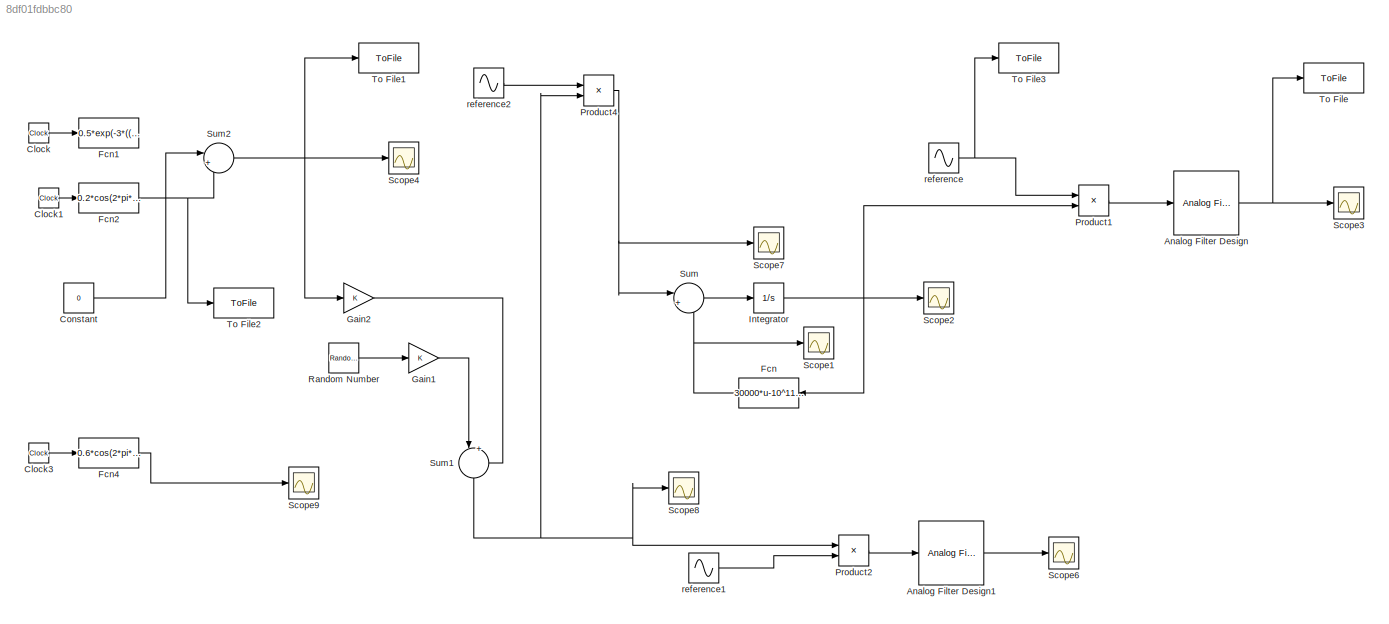
MODEL slx_8df01fdbbc80
KIND model
CONFIG AbsTol = auto
CONFIG EnableMultiTasking = off
CONFIG FixedStep = auto
CONFIG MaxStep = 1e-4
CONFIG MinStep = auto
CONFIG RelTol = 1e-3
CONFIG SampleTimeConstraint = Unconstrained
CONFIG Solver = VariableStepAuto
CONFIG SolverName = VariableStepAuto
CONFIG StartTime = 0.0
CONFIG StopTime = 5
BLOCK [Reference] Analog Filter Design  REF=dsparch4/Analog
Filter Design
  Ports = [1, 1]
  SourceBlock = dsparch4/Analog\nFilter Design
  SourceProductBaseCode = DS
  SourceProductName = DSP System Toolbox
  SourceType = Analog Filter Design
BLOCK [Reference] Analog Filter Design1  REF=dsparch4/Analog
Filter Design
  Ports = [1, 1]
  SourceBlock = dsparch4/Analog\nFilter Design
  SourceProductBaseCode = DS
  SourceProductName = DSP System Toolbox
  SourceType = Analog Filter Design
BLOCK [Clock] Clock
BLOCK [Clock] Clock1
BLOCK [Clock] Clock3
BLOCK [Constant] Constant
  Value = 0
BLOCK [Fcn] Fcn
  Expr = 30000*u-10^11*(13*10)*u^3
BLOCK [Fcn] Fcn1
  Expr = 0.5*exp(-3*((u-1)^2/1))
BLOCK [Fcn] Fcn2
  Expr = 0.2*cos(2*pi*1*u)*exp(-10*((u-2)^2/2))
BLOCK [Fcn] Fcn4
  Expr = 0.6*cos(2*pi*3*u-2*pi*1/3)*exp(-3*(u))
BLOCK [Gain] Gain1
  OutDataTypeStr = Inherit: Inherit via internal rule
  ParamDataTypeStr = Inherit: Inherit via internal rule
  SaturateOnIntegerOverflow = off
BLOCK [Gain] Gain2
  OutDataTypeStr = Inherit: Inherit via internal rule
  ParamDataTypeStr = Inherit: Inherit via internal rule
  SaturateOnIntegerOverflow = off
BLOCK [Integrator] Integrator
  Ports = [1, 1]
BLOCK [Product] Product1
  InputSameDT = off
  OutDataTypeStr = Inherit: Inherit via internal rule
  Ports = [2, 1]
  RndMeth = Floor
  SaturateOnIntegerOverflow = off
BLOCK [Product] Product2
  InputSameDT = off
  OutDataTypeStr = Inherit: Inherit via internal rule
  Ports = [2, 1]
  RndMeth = Floor
  SaturateOnIntegerOverflow = off
BLOCK [Product] Product4
  InputSameDT = off
  OutDataTypeStr = Inherit: Inherit via internal rule
  Ports = [2, 1]
  RndMeth = Floor
  SaturateOnIntegerOverflow = off
BLOCK [RandomNumber] Random Number
  SampleTime = 0.000001
  Variance = 4
BLOCK [Scope] Scope1
  NumInputPorts = 1
  Ports = [1]
  ScopeSpecificationString = Simulink.scopes.TimeScopeBlockCfg('CurrentConfiguration', extmgr.ConfigurationSet(extmgr.Configuration('Core','General UI',true),extmgr.Configuration('Core','Source UI',true),extmgr.Configuration('Sources','WiredSimulink',true,'DataLoggingVariableName','ScopeData1'),extmgr.Configuration('Visuals','Time Domain',true,'SerializedDisplays',{struct('MinYLimReal','-4.67204','MaxYLimReal','4.6884','YLabe...<+1389ch>
BLOCK [Scope] Scope2
  NumInputPorts = 1
  Ports = [1]
  ScopeSpecificationString = Simulink.scopes.TimeScopeBlockCfg('CurrentConfiguration', extmgr.ConfigurationSet(extmgr.Configuration('Core','General UI',true),extmgr.Configuration('Core','Source UI',true),extmgr.Configuration('Sources','WiredSimulink',true,'DataLoggingVariableName','ScopeData2'),extmgr.Configuration('Visuals','Time Domain',true,'SerializedDisplays',{struct('MinYLimReal','0.007875','MaxYLimReal','0.007944','YLa...<+1453ch>
BLOCK [Scope] Scope3
  NumInputPorts = 1
  Ports = [1]
  ScopeSpecificationString = Simulink.scopes.TimeScopeBlockCfg('CurrentConfiguration', extmgr.ConfigurationSet(extmgr.Configuration('Core','General UI',true,'FigureColor',[1 1 1]),extmgr.Configuration('Core','Source UI',true),extmgr.Configuration('Sources','WiredSimulink',true,'DataLoggingVariableName','ScopeData1'),extmgr.Configuration('Visuals','Time Domain',true,'SerializedDisplays',{struct('MinYLimReal','-0.0001','MaxYLim...<+1624ch>
BLOCK [Scope] Scope4
  NumInputPorts = 1
  Ports = [1]
  ScopeSpecificationString = Simulink.scopes.TimeScopeBlockCfg('CurrentConfiguration', extmgr.ConfigurationSet(extmgr.Configuration('Core','General UI',true,'FigureColor',[1 1 1]),extmgr.Configuration('Core','Source UI',true),extmgr.Configuration('Sources','WiredSimulink',true,'DataLoggingVariableName','ScopeData2'),extmgr.Configuration('Visuals','Time Domain',true,'SerializedDisplays',{struct('MinYLimReal','-0.39192','MaxYLi...<+1646ch>
BLOCK [Scope] Scope6
  NumInputPorts = 1
  Ports = [1]
  ScopeSpecificationString = Simulink.scopes.TimeScopeBlockCfg('CurrentConfiguration', extmgr.ConfigurationSet(extmgr.Configuration('Core','General UI',true),extmgr.Configuration('Core','Source UI',true),extmgr.Configuration('Sources','WiredSimulink',true,'DataLoggingVariableName','ScopeData2'),extmgr.Configuration('Visuals','Time Domain',true,'SerializedDisplays',{struct('MinYLimReal','-0.1279','MaxYLimReal','0.16829','YLabe...<+1730ch>
BLOCK [Scope] Scope7
  NumInputPorts = 1
  Ports = [1]
  ScopeSpecificationString = Simulink.scopes.TimeScopeBlockCfg('CurrentConfiguration', extmgr.ConfigurationSet(extmgr.Configuration('Core','General UI',true),extmgr.Configuration('Core','Source UI',true),extmgr.Configuration('Sources','WiredSimulink',true,'DataLoggingVariableName','ScopeData3'),extmgr.Configuration('Visuals','Time Domain',true,'SerializedDisplays',{struct('MinYLimReal','-19.69521','MaxYLimReal','20.11794','YL...<+1751ch>
BLOCK [Scope] Scope8
  NumInputPorts = 1
  Ports = [1]
  ScopeSpecificationString = Simulink.scopes.TimeScopeBlockCfg('CurrentConfiguration', extmgr.ConfigurationSet(extmgr.Configuration('Core','General UI',true,'FigureColor',[1 1 1]),extmgr.Configuration('Core','Source UI',true),extmgr.Configuration('Sources','WiredSimulink',true,'DataLoggingVariableName','ScopeData4'),extmgr.Configuration('Visuals','Time Domain',true,'SerializedDisplays',{struct('MinYLimReal','-10.29546','MaxYL...<+1589ch>
BLOCK [Scope] Scope9
  NumInputPorts = 1
  Ports = [1]
  ScopeSpecificationString = Simulink.scopes.TimeScopeBlockCfg('CurrentConfiguration', extmgr.ConfigurationSet(extmgr.Configuration('Core','General UI',true,'FigureColor',[1 1 1]),extmgr.Configuration('Core','Source UI',true),extmgr.Configuration('Sources','WiredSimulink',true,'DataLoggingVariableName','ScopeData5'),extmgr.Configuration('Visuals','Time Domain',true,'SerializedDisplays',{struct('MinYLimReal','-0.39192','MaxYLi...<+1560ch>
BLOCK [Sum] Sum
  IconShape = round
  InputSameDT = off
  Inputs = |++
  OutDataTypeStr = Inherit: Inherit via internal rule
  Ports = [2, 1]
  SaturateOnIntegerOverflow = off
BLOCK [Sum] Sum1
  IconShape = round
  InputSameDT = off
  Inputs = |++
  OutDataTypeStr = Inherit: Inherit via internal rule
  Ports = [2, 1]
  SaturateOnIntegerOverflow = off
BLOCK [Sum] Sum2
  IconShape = round
  InputSameDT = off
  Inputs = |++
  OutDataTypeStr = Inherit: Inherit via internal rule
  Ports = [2, 1]
  SaturateOnIntegerOverflow = off
BLOCK [ToFile] To File
  Filename = output_fig1.mat
  MatrixName = output_f1
  Ports = [1]
  SampleTime = 0.0001
  SaveFormat = Timeseries
BLOCK [ToFile] To File1
  Filename = source_fig1.mat
  MatrixName = source_f1
  Ports = [1]
  SampleTime = 0.0001
  SaveFormat = Timeseries
BLOCK [ToFile] To File2
  Filename = mix_fig1.mat
  MatrixName = mix_f1
  Ports = [1]
  SampleTime = 0.0001
  SaveFormat = Timeseries
BLOCK [ToFile] To File3
  Filename = refence.mat
  MatrixName = refence
  Ports = [1]
  SampleTime = 0.0001
  SaveFormat = Timeseries
BLOCK [Sin] reference
  Amplitude = 100
  Frequency = 2*pi*3000
  Phase = pi/3
  Ports = [0, 1]
  SampleTime = 0.000001
BLOCK [Sin] reference1
  Amplitude = 2
  Frequency = 1000
  Phase = pi/3
  Ports = [0, 1]
  SampleTime = 0.001
BLOCK [Sin] reference2
  Frequency = 2*pi*3000
  Phase = pi/3
  Ports = [0, 1]
  SampleTime = 0.000001
LINE Analog Filter Design1:1 -> Scope6:1
NET Analog Filter Design:1 -> Scope3:1, To File:1
LINE Clock1:1 -> Fcn2:1
LINE Clock3:1 -> Fcn4:1
LINE Clock:1 -> Fcn1:1
LINE Constant:1 -> Sum2:1
NET Fcn2:1 -> Sum2:2, To File2:1
LINE Fcn4:1 -> Scope9:1
NET Fcn:1 -> Scope1:1, Sum:2
LINE Gain1:1 -> Sum1:1
LINE Gain2:1 -> Sum1:2
NET Integrator:1 -> Fcn:1, Product1:2, Scope2:1
LINE Product1:1 -> Analog Filter Design:1
LINE Product2:1 -> Analog Filter Design1:1
NET Product4:1 -> Scope7:1, Sum:1
LINE Random Number:1 -> Gain1:1
NET Sum1:1 -> Product2:1, Product4:2, Scope8:1
NET Sum2:1 -> Gain2:1, Scope4:1, To File1:1
LINE Sum:1 -> Integrator:1
LINE reference1:1 -> Product2:2
LINE reference2:1 -> Product4:1
NET reference:1 -> Product1:1, To File3:1
note: NET lines group one-source signal fan-out (src -> all destinations, sorted); 1:1 wires keep LINE
